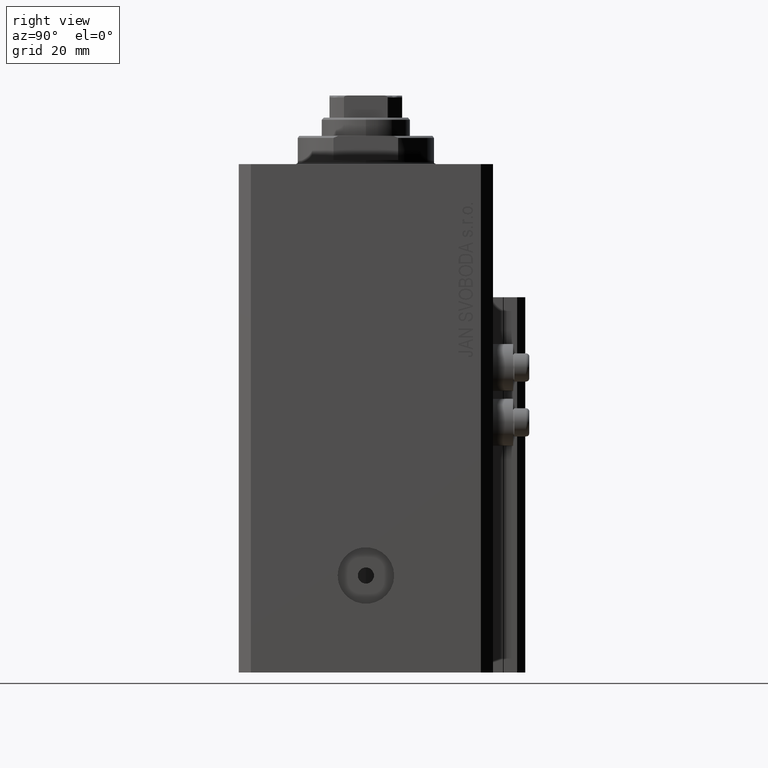
[diagram: clean part render]
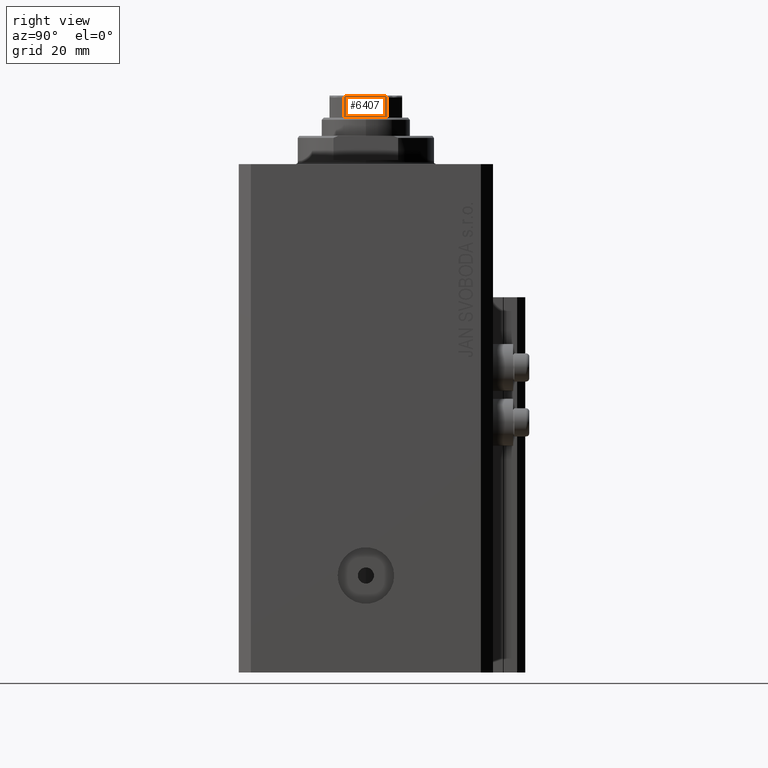
[diagram: same view with one face highlighted and labeled with its STEP entity id]
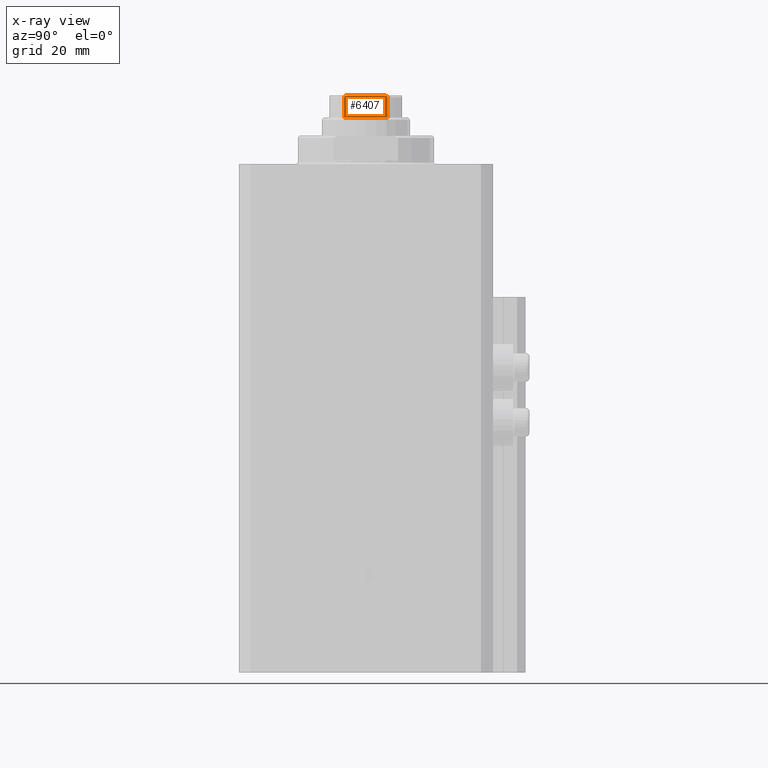
[diagram: x-ray of the same camera — body ghosted, the highlighted face saturated]
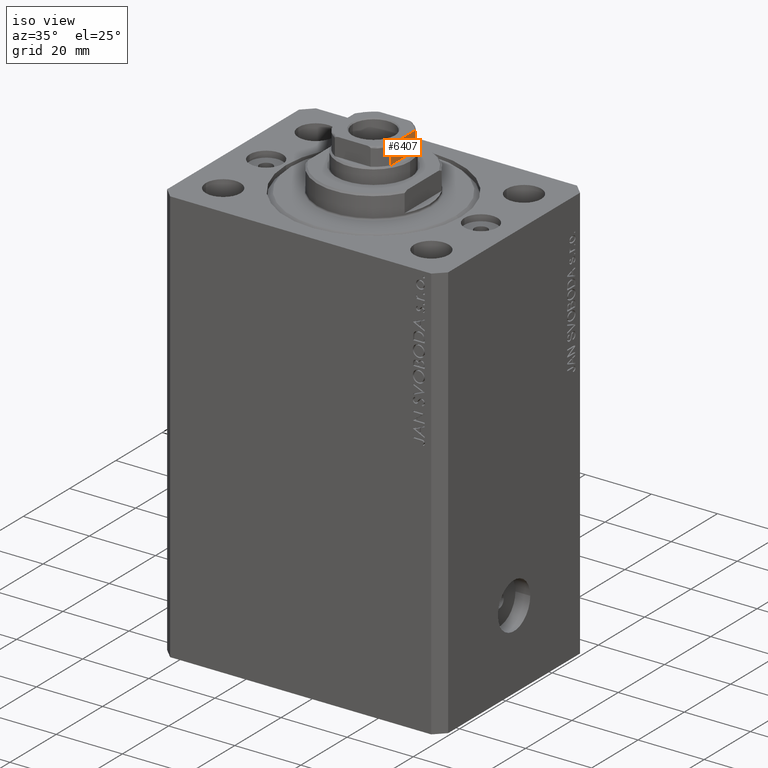
[diagram: same view with one face highlighted and labeled with its STEP entity id]
A machine part, right view. The second image highlights one B-rep face of the part: STEP entity #6407.
The next image is the same camera in x-ray: the body ghosted, the highlighted face saturated — about 0% of this face is hidden behind the body in this view.
A second angle (iso view) of the same face is appended — the face is thin or edge-on in the first view.
In plain terms, the highlighted planar face has unit normal (-1, -0, 0).
Its self-contained STEP definition (entity closure, byte-faithful):
#700 = B_SPLINE_CURVE_WITH_KNOTS ( 'NONE', 3,
 ( #21190, #20491, #28562, #2535, #35477, #35019, #45977, #24520, #17376, #43102 ),
 .UNSPECIFIED., .F., .F.,
 ( 4, 2, 2, 2, 4 ),
 ( 8.673617379884035472E-19, 0.0006221106941441024865, 0.0009331660412161544346, 0.001088693714752181439, 0.001244221388288208443 ),
 .UNSPECIFIED. ) ;
#728 = CARTESIAN_POINT ( 'NONE',  ( 8.999999999999996447, -5.408326913195990571, 131.0999999999999943 ) ) ;
#2395 = DIRECTION ( 'NONE',  ( -0.000000000000000000, -0.000000000000000000, 1.000000000000000000 ) ) ;
#2535 = CARTESIAN_POINT ( 'NONE',  ( 9.000000000000000000, -5.074490744525476771, 131.4787200784332128 ) ) ;
#2584 = VECTOR ( 'NONE', #34250, 1000.000000000000000 ) ;
#2803 = DIRECTION ( 'NONE',  ( -0.000000000000000000, -0.000000000000000000, 1.000000000000000000 ) ) ;
#4420 = LINE ( 'NONE', #23533, #2584 ) ;
#4660 = EDGE_CURVE ( 'NONE', #15946, #11023, #4420, .T. ) ;
#5443 = EDGE_CURVE ( 'NONE', #42841, #6003, #700, .T. ) ;
#6003 = VERTEX_POINT ( 'NONE', #728 ) ;
#6407 = ADVANCED_FACE ( 'NONE', ( #12878 ), #26726, .F. ) ;
#8829 = AXIS2_PLACEMENT_3D ( 'NONE', #41491, #30053, #23386 ) ;
#9025 = CARTESIAN_POINT ( 'NONE',  ( 9.000000000000000000, 5.298186678102083214, 131.3338781215005042 ) ) ;
#9994 = LINE ( 'NONE', #10934, #43378 ) ;
#10277 = CARTESIAN_POINT ( 'NONE',  ( 9.000000000000000000, 5.408326913195986130, 126.0999999999999943 ) ) ;
#10934 = CARTESIAN_POINT ( 'NONE',  ( 9.000000000000000000, 5.408326913195986130, -0.001000000000001000089 ) ) ;
#11023 = VERTEX_POINT ( 'NONE', #10277 ) ;
#11636 = ORIENTED_EDGE ( 'NONE', *, *, #17363, .T. ) ;
#12360 = CARTESIAN_POINT ( 'NONE',  ( 9.000000000000000000, 5.335664150027731090, 131.2951843380012633 ) ) ;
#12596 = CARTESIAN_POINT ( 'NONE',  ( 9.000000000000001776, 5.408326913195987906, 131.1535720727335104 ) ) ;
#12840 = CARTESIAN_POINT ( 'NONE',  ( 9.000000000000000000, 4.778533838065919248, 131.5778291476469803 ) ) ;
#12878 = FACE_OUTER_BOUND ( 'NONE', #35272, .T. ) ;
#13073 = CARTESIAN_POINT ( 'NONE',  ( 9.000000000000000000, 5.077896145217237311, 131.4773016776066754 ) ) ;
#13644 = VERTEX_POINT ( 'NONE', #21791 ) ;
#15946 = VERTEX_POINT ( 'NONE', #47252 ) ;
#16189 = CARTESIAN_POINT ( 'NONE',  ( 9.000000000000000000, 4.358898943540675752, 131.5999999999999943 ) ) ;
#17363 = EDGE_CURVE ( 'NONE', #13644, #23642, #45037, .T. ) ;
#17376 = CARTESIAN_POINT ( 'NONE',  ( 9.000000000000001776, -5.408326913195986130, 131.1537434673187761 ) ) ;
#18636 = ORIENTED_EDGE ( 'NONE', *, *, #36317, .F. ) ;
#19014 = VECTOR ( 'NONE', #19631, 1000.000000000000000 ) ;
#19631 = DIRECTION ( 'NONE',  ( -9.637352644315595243E-17, 1.000000000000000000, -0.000000000000000000 ) ) ;
#19769 = CARTESIAN_POINT ( 'NONE',  ( 9.000000000000000000, 5.174818616237114810, 131.4325218846533119 ) ) ;
#20491 = CARTESIAN_POINT ( 'NONE',  ( 9.000000000000001776, -4.569272810556664233, 131.6000000000000227 ) ) ;
#21190 = CARTESIAN_POINT ( 'NONE',  ( 9.000000000000001776, -4.358898943540675752, 131.5999999999999943 ) ) ;
#21277 = LINE ( 'NONE', #42488, #34588 ) ;
#21791 = CARTESIAN_POINT ( 'NONE',  ( 9.000000000000000000, 5.408326913195986130, 131.0999999999999943 ) ) ;
#22475 = EDGE_CURVE ( 'NONE', #42841, #23642, #40838, .T. ) ;
#23386 = DIRECTION ( 'NONE',  ( 9.637352644315595243E-17, -1.000000000000000000, 0.000000000000000000 ) ) ;
#23399 = ORIENTED_EDGE ( 'NONE', *, *, #23773, .T. ) ;
#23533 = CARTESIAN_POINT ( 'NONE',  ( 9.000000000000000000, 8.999999999999998224, 126.0999999999999943 ) ) ;
#23642 = VERTEX_POINT ( 'NONE', #42195 ) ;
#23773 = EDGE_CURVE ( 'NONE', #11023, #13644, #9994, .T. ) ;
#24444 = CARTESIAN_POINT ( 'NONE',  ( 9.000000000000001776, -4.358898943540675752, 131.5999999999999943 ) ) ;
#24520 = CARTESIAN_POINT ( 'NONE',  ( 9.000000000000001776, -5.390945448132516304, 131.2054816538970385 ) ) ;
#26726 = PLANE ( 'NONE',  #8829 ) ;
#26922 = CARTESIAN_POINT ( 'NONE',  ( 9.000000000000000000, 5.408326913195986130, 131.0999999999999943 ) ) ;
#28562 = CARTESIAN_POINT ( 'NONE',  ( 9.000000000000003553, -4.775913644518299250, 131.5781460743083926 ) ) ;
#30053 = DIRECTION ( 'NONE',  ( -1.000000000000000000, -9.637352644315595243E-17, 0.000000000000000000 ) ) ;
#30103 = ORIENTED_EDGE ( 'NONE', *, *, #4660, .T. ) ;
#33680 = ORIENTED_EDGE ( 'NONE', *, *, #5443, .T. ) ;
#34250 = DIRECTION ( 'NONE',  ( -9.637352644315595243E-17, 1.000000000000000000, -0.000000000000000000 ) ) ;
#34588 = VECTOR ( 'NONE', #2395, 1000.000000000000000 ) ;
#35019 = CARTESIAN_POINT ( 'NONE',  ( 9.000000000000001776, -5.297634495023405776, 131.3344228052780238 ) ) ;
#35272 = EDGE_LOOP ( 'NONE', ( #35348, #33680, #18636, #30103, #23399, #11636 ) ) ;
#35348 = ORIENTED_EDGE ( 'NONE', *, *, #22475, .F. ) ;
#35477 = CARTESIAN_POINT ( 'NONE',  ( 9.000000000000001776, -5.173732970196578407, 131.4331808643798638 ) ) ;
#36317 = EDGE_CURVE ( 'NONE', #15946, #6003, #21277, .T. ) ;
#37738 = CARTESIAN_POINT ( 'NONE',  ( 9.000000000000000000, 8.999999999999998224, 131.5999999999999943 ) ) ;
#37885 = CARTESIAN_POINT ( 'NONE',  ( 8.999999999999998224, 5.390954572107325760, 131.2053628521400128 ) ) ;
#40838 = LINE ( 'NONE', #37738, #19014 ) ;
#41491 = CARTESIAN_POINT ( 'NONE',  ( 9.000000000000000000, 8.999999999999998224, 131.5999999999999943 ) ) ;
#41692 = CARTESIAN_POINT ( 'NONE',  ( 9.000000000000001776, 4.569278586016984889, 131.6000000000000227 ) ) ;
#42195 = CARTESIAN_POINT ( 'NONE',  ( 9.000000000000000000, 4.358898943540675752, 131.5999999999999943 ) ) ;
#42488 = CARTESIAN_POINT ( 'NONE',  ( 8.999999999999996447, -5.408326913195990571, -0.001000000000001000089 ) ) ;
#42841 = VERTEX_POINT ( 'NONE', #24444 ) ;
#43102 = CARTESIAN_POINT ( 'NONE',  ( 8.999999999999996447, -5.408326913195990571, 131.0999999999999943 ) ) ;
#43378 = VECTOR ( 'NONE', #2803, 1000.000000000000000 ) ;
#45037 = B_SPLINE_CURVE_WITH_KNOTS ( 'NONE', 3,
 ( #26922, #12596, #37885, #12360, #9025, #19769, #13073, #12840, #41692, #16189 ),
 .UNSPECIFIED., .F., .F.,
 ( 4, 2, 2, 2, 4 ),
 ( 0.000000000000000000, 0.0001582447020887964273, 0.0003164894041775928547, 0.0006329788083552356911, 0.001265957616710524291 ),
 .UNSPECIFIED. ) ;
#45977 = CARTESIAN_POINT ( 'NONE',  ( 9.000000000000001776, -5.335288102212744299, 131.2956905402762402 ) ) ;
#47252 = CARTESIAN_POINT ( 'NONE',  ( 8.999999999999996447, -5.408326913195990571, 126.0999999999999943 ) ) ;